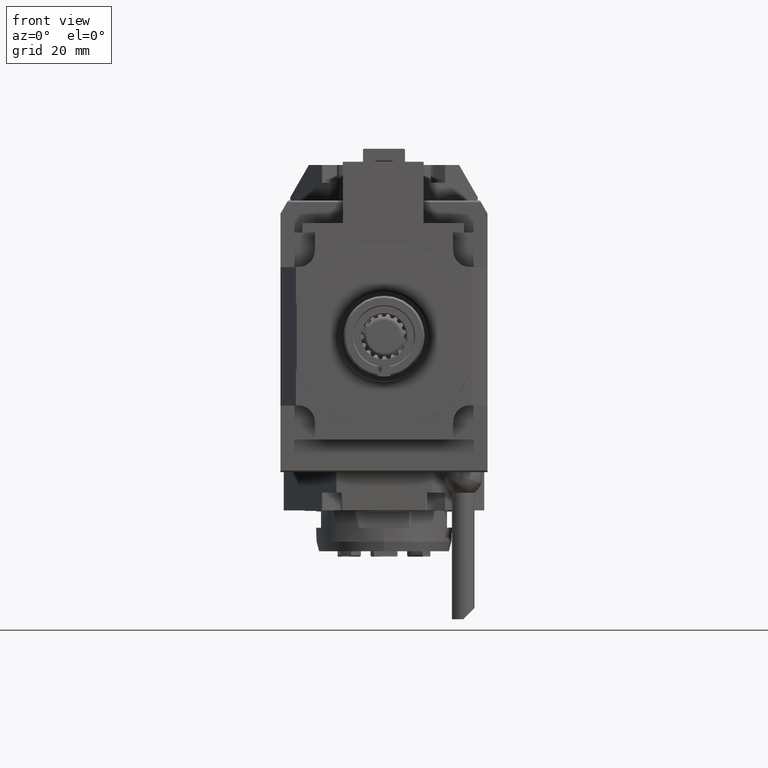
[diagram: clean part render]
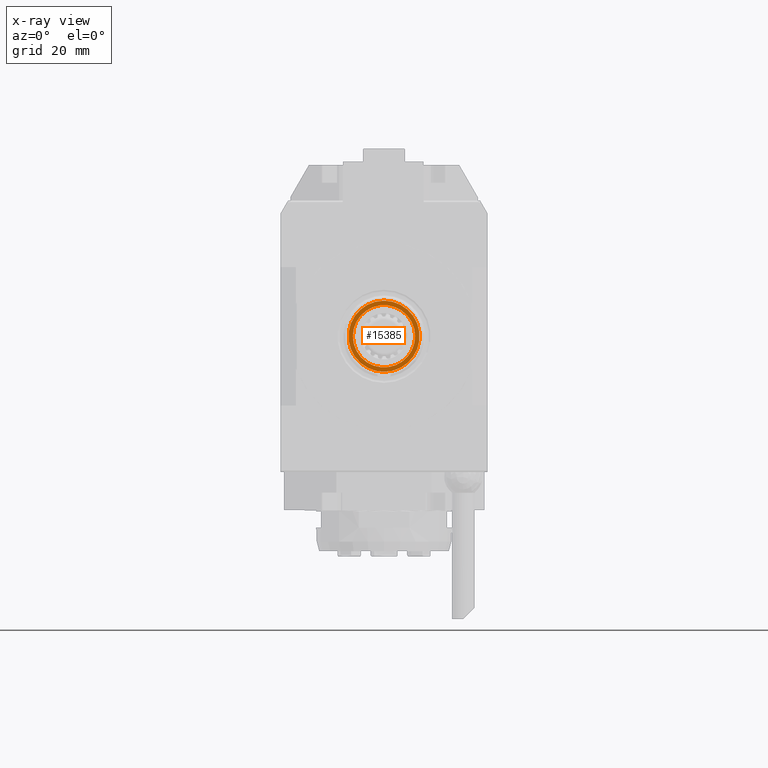
[diagram: x-ray — body ghosted, one internal face saturated and labeled with its STEP entity id]
A machine part, front view, then the same camera in x-ray: the body is ghosted and one INTERNAL B-rep face — a face not visible from any outside direction — is saturated and labeled: STEP entity #15385.
In plain terms, the highlighted planar face has unit normal (0, 1, -0).
Its self-contained STEP definition (entity closure, byte-faithful):
#820 = ORIENTED_EDGE ( 'NONE', *, *, #3233, .T. ) ;
#2643 = DIRECTION ( 'NONE',  ( -1.178803794788636402E-17, 0.000000000000000000, -1.000000000000000000 ) ) ;
#3233 = EDGE_CURVE ( 'NONE', #9864, #9864, #7155, .T. ) ;
#4103 = FACE_OUTER_BOUND ( 'NONE', #4886, .T. ) ;
#4469 = FACE_BOUND ( 'NONE', #30250, .T. ) ;
#4886 = EDGE_LOOP ( 'NONE', ( #820 ) ) ;
#4978 = EDGE_CURVE ( 'NONE', #34812, #34812, #7981, .T. ) ;
#5253 = DIRECTION ( 'NONE',  ( -1.000000000000000000, 0.000000000000000000, 0.000000000000000000 ) ) ;
#5645 = AXIS2_PLACEMENT_3D ( 'NONE', #22297, #25437, #5253 ) ;
#6580 = AXIS2_PLACEMENT_3D ( 'NONE', #36126, #31332, #2643 ) ;
#6877 = PLANE ( 'NONE',  #9582 ) ;
#7155 = CIRCLE ( 'NONE', #6580, 10.99999999999998757 ) ;
#7981 = CIRCLE ( 'NONE', #5645, 9.635512469365947297 ) ;
#9582 = AXIS2_PLACEMENT_3D ( 'NONE', #24257, #18162, #26514 ) ;
#9864 = VERTEX_POINT ( 'NONE', #21146 ) ;
#15385 = ADVANCED_FACE ( 'Defeature completata1_444', ( #4469, #4103 ), #6877, .F. ) ;
#18008 = CARTESIAN_POINT ( 'NONE',  ( -9.635512469365940191, -112.5000000000000142, 2.270014522018216332E-14 ) ) ;
#18162 = DIRECTION ( 'NONE',  ( 6.245004513516543750E-17, 1.000000000000000000, -1.846311881414259946E-16 ) ) ;
#21059 = ORIENTED_EDGE ( 'NONE', *, *, #4978, .F. ) ;
#21146 = CARTESIAN_POINT ( 'NONE',  ( -3.907896148104260118E-15, -112.5000000000000142, -10.99999999999997691 ) ) ;
#22297 = CARTESIAN_POINT ( 'NONE',  ( 6.260370556703457068E-15, -112.5000000000000142, 2.270014522018216332E-14 ) ) ;
#24257 = CARTESIAN_POINT ( 'NONE',  ( -3.863691005799686534E-15, -112.5000000000000142, -7.249999999999982236 ) ) ;
#25437 = DIRECTION ( 'NONE',  ( -6.245004513516544983E-17, -1.000000000000000000, 4.585331006328118055E-17 ) ) ;
#26514 = DIRECTION ( 'NONE',  ( 1.178803794788639791E-17, 1.846311881414259946E-16, 1.000000000000000000 ) ) ;
#30250 = EDGE_LOOP ( 'NONE', ( #21059 ) ) ;
#31332 = DIRECTION ( 'NONE',  ( -6.245004513516544983E-17, -1.000000000000000000, 4.585331006328118055E-17 ) ) ;
#34812 = VERTEX_POINT ( 'NONE', #18008 ) ;
#36126 = CARTESIAN_POINT ( 'NONE',  ( -3.778227730677510306E-15, -112.5000000000000142, 9.713019162735736054E-15 ) ) ;